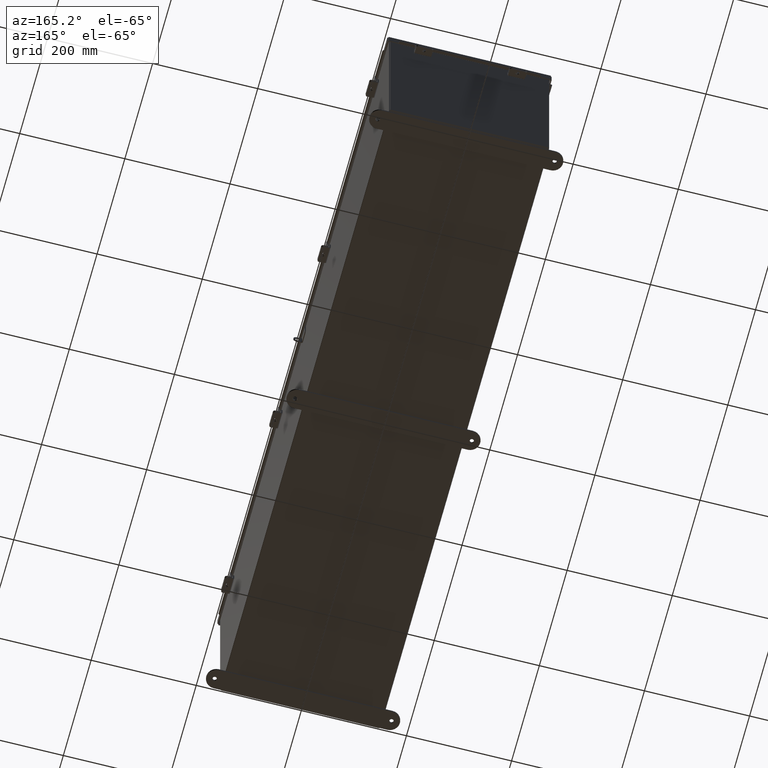
[diagram: clean part render]
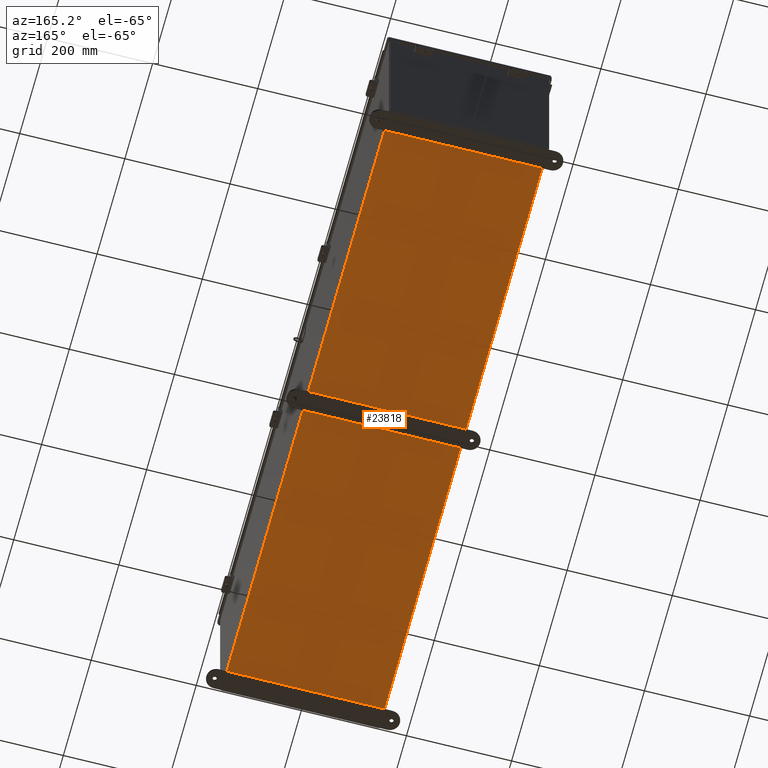
[diagram: same view with one face highlighted and labeled with its STEP entity id]
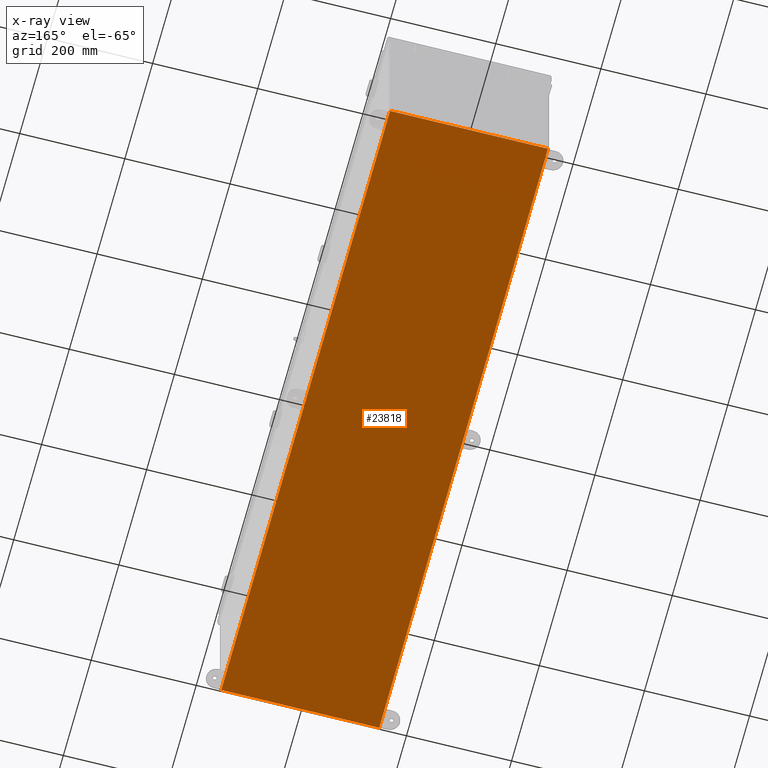
[diagram: x-ray of the same camera — body ghosted, the highlighted face saturated]
A machine part, auxiliary view. The second image highlights one B-rep face of the part: STEP entity #23818.
The next image is the same camera in x-ray: the body ghosted, the highlighted face saturated — about 0% of this face is hidden behind the body in this view.
In plain terms, the highlighted planar face has unit normal (0, 0, -1).
Its self-contained STEP definition (entity closure, byte-faithful):
#180 = VERTEX_POINT ( 'NONE', #16190 ) ;
#729 = LINE ( 'NONE', #3708, #36333 ) ;
#799 = PLANE ( 'NONE',  #4058 ) ;
#990 = VERTEX_POINT ( 'NONE', #19724 ) ;
#2021 = ORIENTED_EDGE ( 'NONE', *, *, #31101, .F. ) ;
#2420 = FACE_OUTER_BOUND ( 'NONE', #13005, .T. ) ;
#3708 = CARTESIAN_POINT ( 'NONE',  ( -6.000000000000002700, -23.92530000000000400, -0.07470000000000000300 ) ) ;
#4058 = AXIS2_PLACEMENT_3D ( 'NONE', #6506, #31720, #14975 ) ;
#4797 = VECTOR ( 'NONE', #19080, 39.37007874015748100 ) ;
#5644 = VECTOR ( 'NONE', #27418, 39.37007874015748100 ) ;
#6506 = CARTESIAN_POINT ( 'NONE',  ( 0.0000000000000000000, 0.0000000000000000000, -0.07470000000000000300 ) ) ;
#6517 = DIRECTION ( 'NONE',  ( 1.000000000000000000, 3.642463991552351500E-016, 0.0000000000000000000 ) ) ;
#7919 = VERTEX_POINT ( 'NONE', #23672 ) ;
#7921 = ORIENTED_EDGE ( 'NONE', *, *, #16169, .F. ) ;
#10329 = ORIENTED_EDGE ( 'NONE', *, *, #16178, .T. ) ;
#13005 = EDGE_LOOP ( 'NONE', ( #7921, #27835, #2021, #10329 ) ) ;
#13162 = LINE ( 'NONE', #35731, #5644 ) ;
#14006 = LINE ( 'NONE', #24595, #4797 ) ;
#14975 = DIRECTION ( 'NONE',  ( -1.000000000000000000, 0.0000000000000000000, -0.0000000000000000000 ) ) ;
#15366 = EDGE_CURVE ( 'NONE', #180, #7919, #30251, .T. ) ;
#15583 = VERTEX_POINT ( 'NONE', #18496 ) ;
#16169 = EDGE_CURVE ( 'NONE', #180, #990, #13162, .T. ) ;
#16178 = EDGE_CURVE ( 'NONE', #15583, #990, #14006, .T. ) ;
#16190 = CARTESIAN_POINT ( 'NONE',  ( 5.912299999999998300, 23.92529999999998900, -0.07470000000000048800 ) ) ;
#18496 = CARTESIAN_POINT ( 'NONE',  ( -5.912300000000002800, -23.92530000000000400, -0.07469999999999940600 ) ) ;
#19080 = DIRECTION ( 'NONE',  ( -0.0000000000000000000, 1.000000000000000000, -0.0000000000000000000 ) ) ;
#19724 = CARTESIAN_POINT ( 'NONE',  ( -5.912300000000002800, 23.92530000000000400, -0.07470000000000000300 ) ) ;
#20354 = DIRECTION ( 'NONE',  ( -0.0000000000000000000, -1.000000000000000000, -0.0000000000000000000 ) ) ;
#22800 = VECTOR ( 'NONE', #20354, 39.37007874015748100 ) ;
#23672 = CARTESIAN_POINT ( 'NONE',  ( 5.912299999999998300, -23.92529999999998900, -0.07470000000000000300 ) ) ;
#23818 = ADVANCED_FACE ( 'NONE', ( #2420 ), #799, .T. ) ;
#24595 = CARTESIAN_POINT ( 'NONE',  ( -5.912300000000002800, -23.92530000000000000, -0.07469999999999940600 ) ) ;
#27418 = DIRECTION ( 'NONE',  ( -1.000000000000000000, -0.0000000000000000000, -0.0000000000000000000 ) ) ;
#27835 = ORIENTED_EDGE ( 'NONE', *, *, #15366, .T. ) ;
#28648 = CARTESIAN_POINT ( 'NONE',  ( 5.912299999999998300, 23.92529999999998900, -0.07470000000000048800 ) ) ;
#30251 = LINE ( 'NONE', #28648, #22800 ) ;
#31101 = EDGE_CURVE ( 'NONE', #15583, #7919, #729, .T. ) ;
#31720 = DIRECTION ( 'NONE',  ( 0.0000000000000000000, 0.0000000000000000000, -1.000000000000000000 ) ) ;
#35731 = CARTESIAN_POINT ( 'NONE',  ( -6.000000000000002700, 23.92530000000000400, -0.07470000000000000300 ) ) ;
#36333 = VECTOR ( 'NONE', #6517, 39.37007874015748100 ) ;